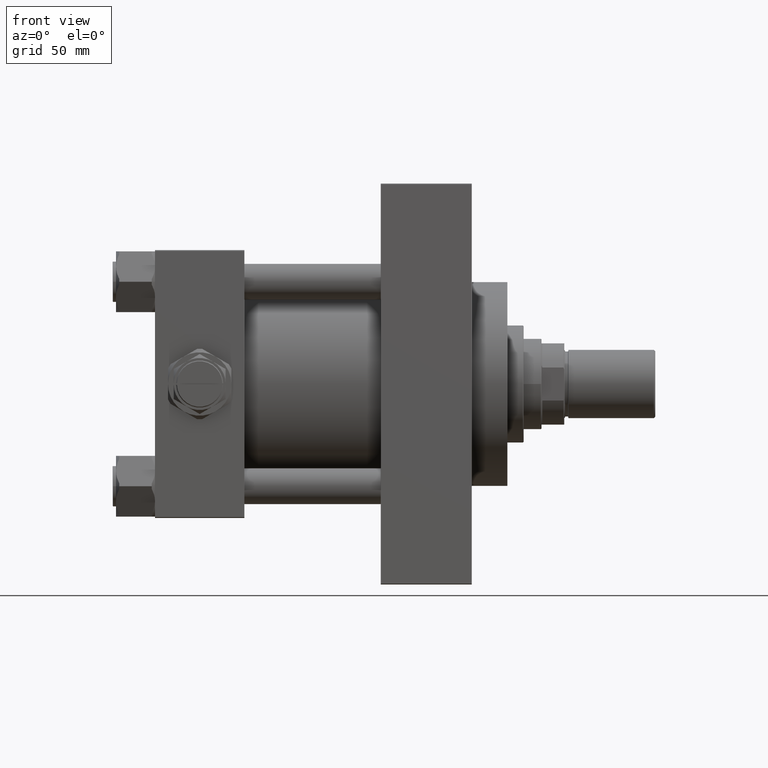
[diagram: clean part render]
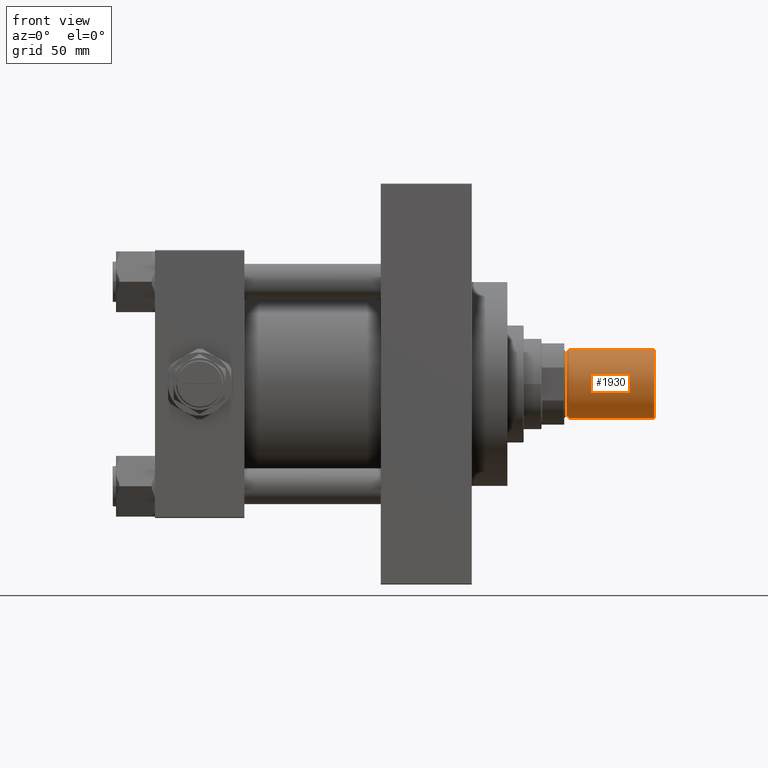
[diagram: same view with one face highlighted and labeled with its STEP entity id]
A machine part, front view. The second image highlights one B-rep face of the part: STEP entity #1930.
In plain terms, the highlighted cylindrical surface (edge-blend (fillet) strip) has radius 21 mm, axis along (1, -0, -0).
Its self-contained STEP definition (entity closure, byte-faithful):
#1459 = VERTEX_POINT ( 'NONE', #17474 ) ;
#1930 = ADVANCED_FACE ( 'NONE', ( #6789 ), #10574, .T. ) ;
#2652 = EDGE_CURVE ( 'NONE', #17827, #8226, #39312, .T. ) ;
#4800 = DIRECTION ( 'NONE',  ( -0.000000000000000000, -0.000000000000000000, -1.000000000000000000 ) ) ;
#5569 = VERTEX_POINT ( 'NONE', #15533 ) ;
#6396 = AXIS2_PLACEMENT_3D ( 'NONE', #25978, #14611, #22199 ) ;
#6789 = FACE_OUTER_BOUND ( 'NONE', #19728, .T. ) ;
#8080 = LINE ( 'NONE', #8324, #8778 ) ;
#8226 = VERTEX_POINT ( 'NONE', #30521 ) ;
#8324 = CARTESIAN_POINT ( 'NONE',  ( 21.00000000000000000, 2.571758278209441661E-15, 53.50000000000000000 ) ) ;
#8778 = VECTOR ( 'NONE', #4800, 1000.000000000000000 ) ;
#10487 = DIRECTION ( 'NONE',  ( -0.000000000000000000, -0.000000000000000000, 1.000000000000000000 ) ) ;
#10574 = CYLINDRICAL_SURFACE ( 'NONE', #6396, 21.00000000000000000 ) ;
#10872 = EDGE_CURVE ( 'NONE', #5569, #8226, #8080, .T. ) ;
#13767 = CARTESIAN_POINT ( 'NONE',  ( 0.000000000000000000, 0.000000000000000000, 53.50000000000000000 ) ) ;
#14611 = DIRECTION ( 'NONE',  ( -0.000000000000000000, -0.000000000000000000, -1.000000000000000000 ) ) ;
#15533 = CARTESIAN_POINT ( 'NONE',  ( 21.00000000000000000, 2.571758278209441661E-15, 53.50000000000000000 ) ) ;
#17474 = CARTESIAN_POINT ( 'NONE',  ( -21.00000000000000000, 0.000000000000000000, 53.50000000000000000 ) ) ;
#17827 = VERTEX_POINT ( 'NONE', #27347 ) ;
#18315 = CARTESIAN_POINT ( 'NONE',  ( 0.000000000000000000, 0.000000000000000000, 0.7999999999999882760 ) ) ;
#18720 = CARTESIAN_POINT ( 'NONE',  ( -21.00000000000000000, 0.000000000000000000, 53.50000000000000000 ) ) ;
#18975 = DIRECTION ( 'NONE',  ( -0.000000000000000000, -0.000000000000000000, -1.000000000000000000 ) ) ;
#19728 = EDGE_LOOP ( 'NONE', ( #25732, #24801, #25160, #37641 ) ) ;
#22199 = DIRECTION ( 'NONE',  ( -1.000000000000000000, 0.000000000000000000, 0.000000000000000000 ) ) ;
#24586 = VECTOR ( 'NONE', #18975, 1000.000000000000000 ) ;
#24653 = DIRECTION ( 'NONE',  ( 0.000000000000000000, 0.000000000000000000, 1.000000000000000000 ) ) ;
#24801 = ORIENTED_EDGE ( 'NONE', *, *, #26396, .F. ) ;
#25147 = DIRECTION ( 'NONE',  ( 1.000000000000000000, 0.000000000000000000, 0.000000000000000000 ) ) ;
#25160 = ORIENTED_EDGE ( 'NONE', *, *, #39911, .T. ) ;
#25381 = CIRCLE ( 'NONE', #38283, 21.00000000000000000 ) ;
#25732 = ORIENTED_EDGE ( 'NONE', *, *, #10872, .F. ) ;
#25978 = CARTESIAN_POINT ( 'NONE',  ( 0.000000000000000000, 0.000000000000000000, 53.50000000000000000 ) ) ;
#26396 = EDGE_CURVE ( 'NONE', #1459, #5569, #25381, .T. ) ;
#27044 = LINE ( 'NONE', #18720, #24586 ) ;
#27347 = CARTESIAN_POINT ( 'NONE',  ( -21.00000000000000000, 0.000000000000000000, 0.7999999999999882760 ) ) ;
#30521 = CARTESIAN_POINT ( 'NONE',  ( 21.00000000000000000, 2.571758278209441661E-15, 0.7999999999999882760 ) ) ;
#36981 = DIRECTION ( 'NONE',  ( 1.000000000000000000, 0.000000000000000000, 0.000000000000000000 ) ) ;
#37641 = ORIENTED_EDGE ( 'NONE', *, *, #2652, .T. ) ;
#38283 = AXIS2_PLACEMENT_3D ( 'NONE', #13767, #24653, #25147 ) ;
#39312 = CIRCLE ( 'NONE', #44143, 21.00000000000000000 ) ;
#39911 = EDGE_CURVE ( 'NONE', #1459, #17827, #27044, .T. ) ;
#44143 = AXIS2_PLACEMENT_3D ( 'NONE', #18315, #10487, #36981 ) ;